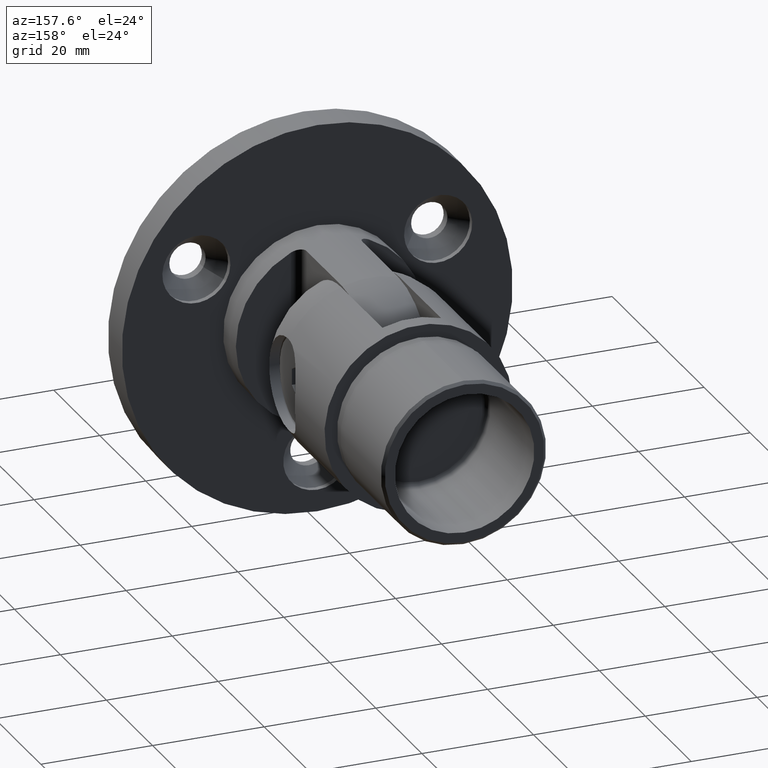
[diagram: clean part render]
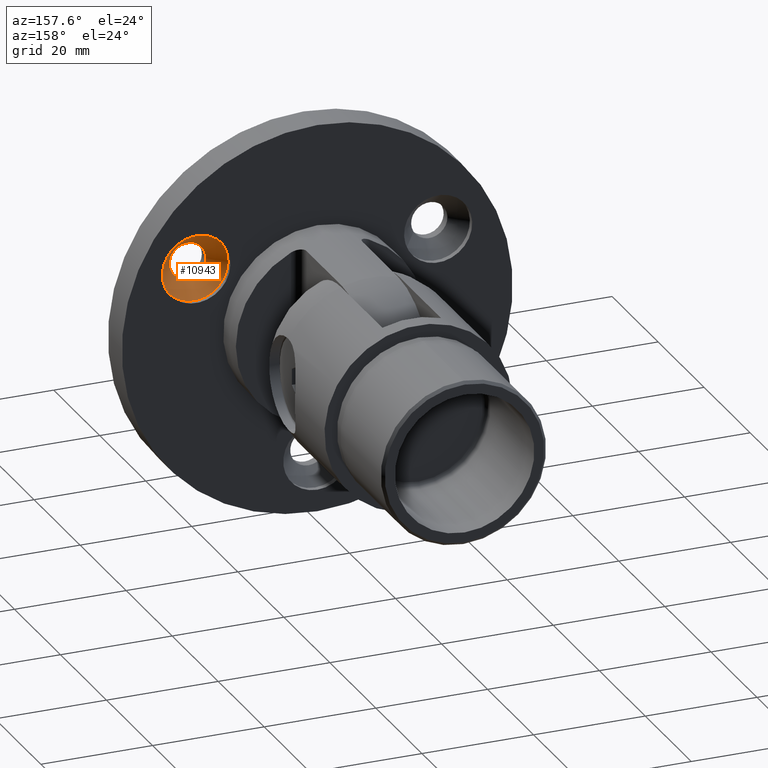
[diagram: same view with one face highlighted and labeled with its STEP entity id]
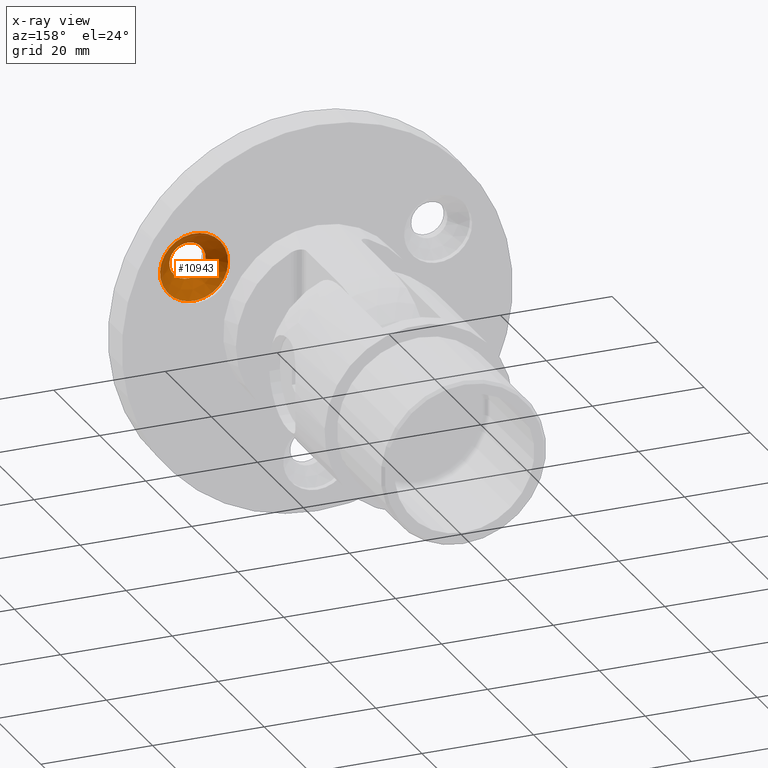
[diagram: x-ray of the same camera — body ghosted, the highlighted face saturated]
A machine part, auxiliary view. The second image highlights one B-rep face of the part: STEP entity #10943.
The next image is the same camera in x-ray: the body ghosted, the highlighted face saturated — about 0% of this face is hidden behind the body in this view.
In plain terms, the highlighted conical surface has half-angle 45 deg.
Its self-contained STEP definition (entity closure, byte-faithful):
#71 = AXIS2_PLACEMENT_3D ( 'NONE', #8885, #2594, #5232 ) ;
#1067 = VERTEX_POINT ( 'NONE', #15474 ) ;
#2017 = ORIENTED_EDGE ( 'NONE', *, *, #12284, .T. ) ;
#2594 = DIRECTION ( 'NONE',  ( 0.000000000000000000, 1.000000000000000000, 0.000000000000000000 ) ) ;
#2676 = CONICAL_SURFACE ( 'NONE', #14074, 6.099999999999998757, 0.7853981633974487231 ) ;
#3233 = CARTESIAN_POINT ( 'NONE',  ( 18.83605253231149490, 2.150000000000002576, 10.87500000000008882 ) ) ;
#4224 = EDGE_LOOP ( 'NONE', ( #2017 ) ) ;
#4365 = CIRCLE ( 'NONE', #7748, 6.099999999999998757 ) ;
#4963 = EDGE_CURVE ( 'NONE', #7967, #7967, #9356, .T. ) ;
#5232 = DIRECTION ( 'NONE',  ( -0.8660254037844362651, 0.000000000000000000, -0.5000000000000041078 ) ) ;
#6829 = ORIENTED_EDGE ( 'NONE', *, *, #4963, .F. ) ;
#7042 = DIRECTION ( 'NONE',  ( -0.8660254037844362651, 0.000000000000000000, -0.5000000000000041078 ) ) ;
#7748 = AXIS2_PLACEMENT_3D ( 'NONE', #9208, #15327, #8021 ) ;
#7967 = VERTEX_POINT ( 'NONE', #3233 ) ;
#8021 = DIRECTION ( 'NONE',  ( -0.8660254037844362651, 0.000000000000000000, -0.5000000000000041078 ) ) ;
#8245 = DIRECTION ( 'NONE',  ( 0.000000000000000000, 1.000000000000000000, 0.000000000000000000 ) ) ;
#8437 = FACE_OUTER_BOUND ( 'NONE', #4224, .T. ) ;
#8885 = CARTESIAN_POINT ( 'NONE',  ( 21.65063509461091584, 2.150000000000002576, 12.50000000000010303 ) ) ;
#9208 = CARTESIAN_POINT ( 'NONE',  ( 21.65063509461091584, 5.000000000000000000, 12.50000000000010303 ) ) ;
#9356 = CIRCLE ( 'NONE', #71, 3.250000000000000444 ) ;
#10943 = ADVANCED_FACE ( 'NONE', ( #11119, #8437 ), #2676, .F. ) ;
#11119 = FACE_BOUND ( 'NONE', #13045, .T. ) ;
#12284 = EDGE_CURVE ( 'NONE', #1067, #1067, #4365, .T. ) ;
#13045 = EDGE_LOOP ( 'NONE', ( #6829 ) ) ;
#14074 = AXIS2_PLACEMENT_3D ( 'NONE', #14309, #8245, #7042 ) ;
#14309 = CARTESIAN_POINT ( 'NONE',  ( 21.65063509461091584, 5.000000000000000000, 12.50000000000010303 ) ) ;
#15327 = DIRECTION ( 'NONE',  ( 0.000000000000000000, 1.000000000000000000, 0.000000000000000000 ) ) ;
#15474 = CARTESIAN_POINT ( 'NONE',  ( 16.36788013152585464, 5.000000000000000000, 9.450000000000077449 ) ) ;